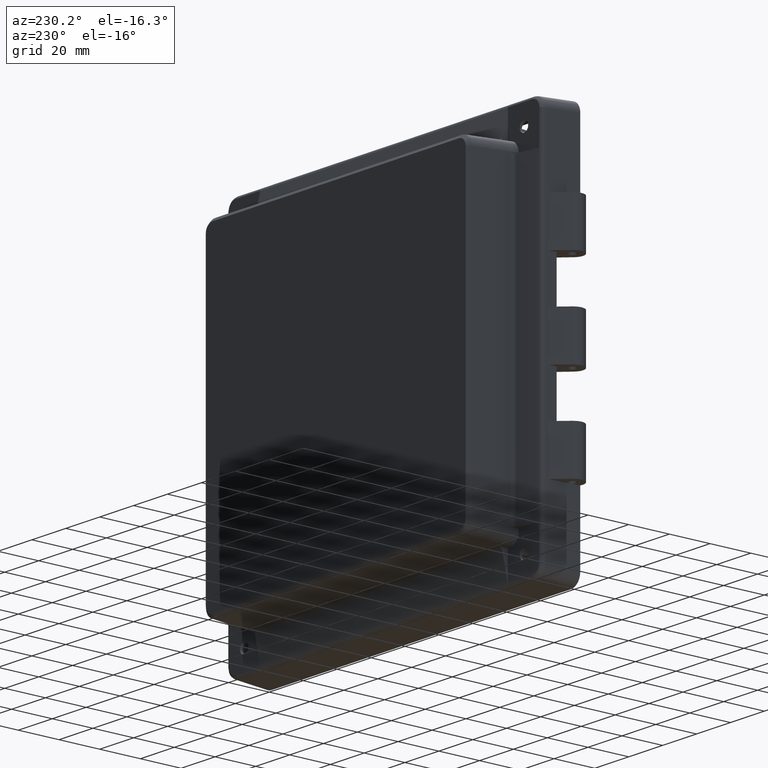
[diagram: clean part render]
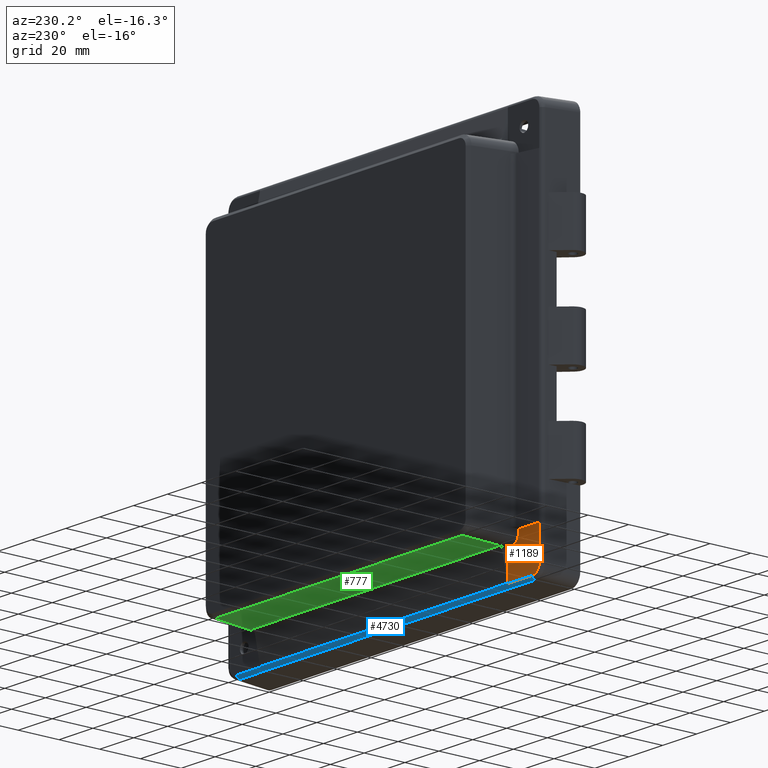
[diagram: same view with three faces highlighted in distinct colors, each labeled with its STEP entity id]
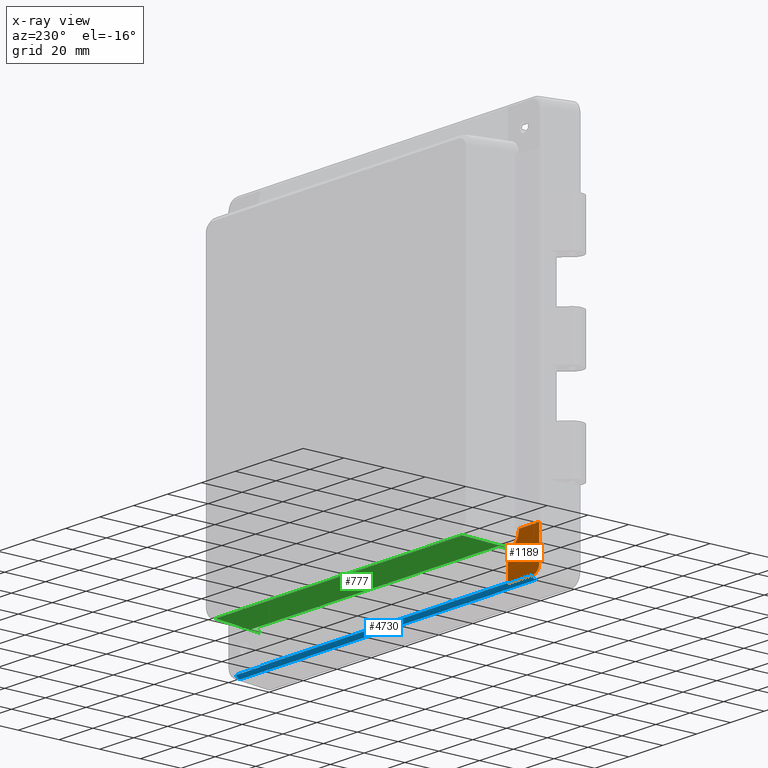
[diagram: x-ray of the same camera — body ghosted, the three highlighted faces saturated]
A machine part, auxiliary view with three faces highlighted in distinct colors.
The next image is the same camera in x-ray (body ghosted, the three faces saturated) — at least one of them is partly hidden behind the body in this view.
Their STEP definitions:

[orange] entity #1189 — the highlighted planar face has unit normal (0, 1, 0).
#34 = DIRECTION ( 'NONE',  ( -1.000000000000000000, 0.0000000000000000000, 0.0000000000000000000 ) ) ;
#42 = VERTEX_POINT ( 'NONE', #2968 ) ;
#67 = ORIENTED_EDGE ( 'NONE', *, *, #5579, .F. ) ;
#68 = CARTESIAN_POINT ( 'NONE',  ( -73.08475897172267800, 10.26305314132466200, -81.70147521895934500 ) ) ;
#96 = VERTEX_POINT ( 'NONE', #3168 ) ;
#128 = CARTESIAN_POINT ( 'NONE',  ( -79.46213617619935100, 10.26305314132466200, -74.46967373504917000 ) ) ;
#179 = B_SPLINE_CURVE_WITH_KNOTS ( 'NONE', 3,
 ( #2058, #5962, #959, #6698 ),
 .UNSPECIFIED., .F., .F.,
 ( 4, 4 ),
 ( 4.163336342344337000E-017, 0.0002607945202662411800 ),
 .UNSPECIFIED. ) ;
#209 = CARTESIAN_POINT ( 'NONE',  ( -90.01611526761999500, 10.26305314132466200, -92.86899418164762200 ) ) ;
#237 = CARTESIAN_POINT ( 'NONE',  ( -89.31779479687595800, 10.26305314132466300, -93.28586394526982400 ) ) ;
#490 = DIRECTION ( 'NONE',  ( -0.7660444431189692400, 0.0000000000000000000, 0.6427876096865498000 ) ) ;
#517 = CARTESIAN_POINT ( 'NONE',  ( 73.96967373504922700, 10.26305314132466200, 74.46967373504919900 ) ) ;
#570 = PLANE ( 'NONE',  #2822 ) ;
#604 = DIRECTION ( 'NONE',  ( 0.0000000000000000000, 0.0000000000000000000, 1.000000000000000000 ) ) ;
#609 = LINE ( 'NONE', #6969, #1693 ) ;
#630 = ORIENTED_EDGE ( 'NONE', *, *, #2874, .T. ) ;
#779 = EDGE_CURVE ( 'NONE', #6082, #4636, #1017, .T. ) ;
#847 = CARTESIAN_POINT ( 'NONE',  ( -73.96967373504918400, 10.26305314132466200, -79.96213617619933700 ) ) ;
#870 = CARTESIAN_POINT ( 'NONE',  ( -89.56253227678773500, 10.26305314132466000, -93.16230718569342200 ) ) ;
#900 = CARTESIAN_POINT ( 'NONE',  ( -91.58264067045061600, 10.26305314132466200, -73.58475897172269200 ) ) ;
#932 = VERTEX_POINT ( 'NONE', #2326 ) ;
#959 = CARTESIAN_POINT ( 'NONE',  ( -87.30350179303006500, 10.26305314132466200, -93.68264067045058100 ) ) ;
#971 = CARTESIAN_POINT ( 'NONE',  ( 93.40000000000007700, 10.26305314132466200, -93.68264067045056700 ) ) ;
#1017 = CIRCLE ( 'NONE', #4174, 2.499999999999988500 ) ;
#1023 = ORIENTED_EDGE ( 'NONE', *, *, #1105, .F. ) ;
#1037 = DIRECTION ( 'NONE',  ( 0.0000000000000000000, 0.0000000000000000000, 1.000000000000000000 ) ) ;
#1085 = CARTESIAN_POINT ( 'NONE',  ( -80.47424303675309400, 10.26305314132466200, -82.60225959424913400 ) ) ;
#1105 = EDGE_CURVE ( 'NONE', #2096, #4070, #1941, .T. ) ;
#1162 = DIRECTION ( 'NONE',  ( -1.000000000000000000, 0.0000000000000000000, 0.0000000000000000000 ) ) ;
#1189 = ADVANCED_FACE ( 'NONE', ( #3715, #7379 ), #570, .T. ) ;
#1249 = EDGE_CURVE ( 'NONE', #3218, #3585, #4171, .T. ) ;
#1292 = CARTESIAN_POINT ( 'NONE',  ( -79.18177703806154000, 10.26305314132466200, -76.23920910693496500 ) ) ;
#1319 = CARTESIAN_POINT ( 'NONE',  ( -77.34010365958138800, 10.26305314132466200, -78.86575685644218900 ) ) ;
#1366 = CARTESIAN_POINT ( 'NONE',  ( -74.33067421224697600, 10.26305314132466200, -79.96213617619932300 ) ) ;
#1408 = CARTESIAN_POINT ( 'NONE',  ( -91.57980475627654500, 10.26305314132466200, -89.57734938703171700 ) ) ;
#1428 = CARTESIAN_POINT ( 'NONE',  ( -90.60673246428268600, 10.26305314132466300, -92.31754257950359500 ) ) ;
#1693 = VECTOR ( 'NONE', #1162, 1000.000000000000000 ) ;
#1714 = CARTESIAN_POINT ( 'NONE',  ( -82.51926223426440300, 10.26305314132466200, -86.51926223426436000 ) ) ;
#1799 = DIRECTION ( 'NONE',  ( 0.0000000000000000000, 0.0000000000000000000, 1.000000000000000000 ) ) ;
#1930 = CARTESIAN_POINT ( 'NONE',  ( -79.42688717324297400, 10.26305314132466200, -75.18749910384652000 ) ) ;
#1941 = LINE ( 'NONE', #971, #6758 ) ;
#1966 = CARTESIAN_POINT ( 'NONE',  ( -91.57980475627654500, 10.26305314132466200, -89.57734938703171700 ) ) ;
#1975 = VERTEX_POINT ( 'NONE', #5859 ) ;
#1997 = DIRECTION ( 'NONE',  ( -0.0000000000000000000, -1.000000000000000000, -0.0000000000000000000 ) ) ;
#2005 = DIRECTION ( 'NONE',  ( 0.0000000000000000000, 0.0000000000000000000, -1.000000000000000000 ) ) ;
#2011 = DIRECTION ( 'NONE',  ( -0.0000000000000000000, -1.000000000000000000, -0.0000000000000000000 ) ) ;
#2019 = DIRECTION ( 'NONE',  ( 0.0000000000000000000, 0.0000000000000000000, -1.000000000000000000 ) ) ;
#2031 = VECTOR ( 'NONE', #490, 1000.000000000000100 ) ;
#2058 = CARTESIAN_POINT ( 'NONE',  ( -87.47734938703173700, 10.26305314132466200, -93.67980475627649600 ) ) ;
#2092 = AXIS2_PLACEMENT_3D ( 'NONE', #6964, #6861, #1799 ) ;
#2096 = VERTEX_POINT ( 'NONE', #5910 ) ;
#2264 = LINE ( 'NONE', #5327, #6569 ) ;
#2326 = CARTESIAN_POINT ( 'NONE',  ( -87.47734938703173700, 10.26305314132466200, -93.67980475627649600 ) ) ;
#2403 = CIRCLE ( 'NONE', #7018, 2.499999999999988500 ) ;
#2501 = CARTESIAN_POINT ( 'NONE',  ( -75.38415624586852500, 10.26305314132466000, -79.78880148514602400 ) ) ;
#2534 = CARTESIAN_POINT ( 'NONE',  ( -81.67173718818632700, 10.26305314132466200, -81.98906488024424300 ) ) ;
#2547 = ORIENTED_EDGE ( 'NONE', *, *, #3440, .T. ) ;
#2574 = VECTOR ( 'NONE', #2005, 1000.000000000000000 ) ;
#2663 = DIRECTION ( 'NONE',  ( 1.000000000000000000, -0.0000000000000000000, 0.0000000000000000000 ) ) ;
#2696 = EDGE_CURVE ( 'NONE', #42, #5215, #2264, .T. ) ;
#2790 = CIRCLE ( 'NONE', #5649, 2.499999999999988500 ) ;
#2822 = AXIS2_PLACEMENT_3D ( 'NONE', #517, #7423, #5689 ) ;
#2845 = CARTESIAN_POINT ( 'NONE',  ( -73.08475897172267800, 10.26305314132466200, -93.68264067045056700 ) ) ;
#2853 = VERTEX_POINT ( 'NONE', #6216 ) ;
#2874 = EDGE_CURVE ( 'NONE', #96, #1975, #2790, .T. ) ;
#2968 = CARTESIAN_POINT ( 'NONE',  ( -73.08475897172267800, 10.26305314132465800, -79.96213617619933700 ) ) ;
#3024 = LINE ( 'NONE', #68, #5713 ) ;
#3027 = CARTESIAN_POINT ( 'NONE',  ( -73.96967373504918400, 10.26305314132466200, -79.96213617619933700 ) ) ;
#3139 = CARTESIAN_POINT ( 'NONE',  ( -79.46213617619938000, 10.26305314132466200, -75.32409801448275700 ) ) ;
#3155 = CARTESIAN_POINT ( 'NONE',  ( -91.56798119111826400, 10.26305314132466000, -90.12002914153710300 ) ) ;
#3168 = CARTESIAN_POINT ( 'NONE',  ( -81.55616559099385700, 10.26305314132466200, -81.71221978651421100 ) ) ;
#3202 = VECTOR ( 'NONE', #4850, 1000.000000000000000 ) ;
#3218 = VERTEX_POINT ( 'NONE', #1085 ) ;
#3371 = B_SPLINE_CURVE_WITH_KNOTS ( 'NONE', 3,
 ( #5469, #5493, #4990, #5013 ),
 .UNSPECIFIED., .F., .F.,
 ( 4, 4 ),
 ( 1.387778780781445700E-017, 0.0002607945202661995400 ),
 .UNSPECIFIED. ) ;
#3379 = CARTESIAN_POINT ( 'NONE',  ( -82.51926223426440300, 10.26305314132466200, -84.01926223426437400 ) ) ;
#3388 = EDGE_LOOP ( 'NONE', ( #630, #5236, #4520, #2547, #3705, #4833 ) ) ;
#3440 = EDGE_CURVE ( 'NONE', #4636, #3218, #4548, .T. ) ;
#3466 = EDGE_CURVE ( 'NONE', #4070, #42, #3024, .T. ) ;
#3482 = ORIENTED_EDGE ( 'NONE', *, *, #6717, .F. ) ;
#3507 = ORIENTED_EDGE ( 'NONE', *, *, #2696, .F. ) ;
#3555 = EDGE_CURVE ( 'NONE', #4185, #4796, #4279, .T. ) ;
#3585 = VERTEX_POINT ( 'NONE', #4075 ) ;
#3682 = CARTESIAN_POINT ( 'NONE',  ( -90.77816533940664100, 10.26305314132466500, -92.10370192840194600 ) ) ;
#3698 = CARTESIAN_POINT ( 'NONE',  ( -75.73032353873499300, 10.26305314132466300, -79.68472801789867800 ) ) ;
#3702 = CARTESIAN_POINT ( 'NONE',  ( -91.19021633539554700, 10.26305314132466300, -91.40871898886668100 ) ) ;
#3705 = ORIENTED_EDGE ( 'NONE', *, *, #1249, .T. ) ;
#3715 = FACE_OUTER_BOUND ( 'NONE', #4243, .T. ) ;
#3736 = EDGE_CURVE ( 'NONE', #6462, #2853, #4101, .T. ) ;
#3742 = CARTESIAN_POINT ( 'NONE',  ( -79.46213617619932300, 10.26305314132465800, -73.58475897172269200 ) ) ;
#3934 = ORIENTED_EDGE ( 'NONE', *, *, #6953, .F. ) ;
#4039 = DIRECTION ( 'NONE',  ( -0.0000000000000000000, -1.000000000000000000, -0.0000000000000000000 ) ) ;
#4070 = VERTEX_POINT ( 'NONE', #2845 ) ;
#4075 = CARTESIAN_POINT ( 'NONE',  ( -81.47890090528034100, 10.26305314132466200, -81.75925154730853700 ) ) ;
#4100 = DIRECTION ( 'NONE',  ( -0.0000000000000000000, 0.0000000000000000000, 1.000000000000000000 ) ) ;
#4101 = LINE ( 'NONE', #4853, #2574 ) ;
#4171 = LINE ( 'NONE', #6264, #2031 ) ;
#4174 = AXIS2_PLACEMENT_3D ( 'NONE', #3379, #6199, #1037 ) ;
#4185 = VERTEX_POINT ( 'NONE', #128 ) ;
#4243 = EDGE_LOOP ( 'NONE', ( #6505, #3482, #6206, #6074, #3934, #6541, #67, #3507, #5427, #1023 ) ) ;
#4255 = CARTESIAN_POINT ( 'NONE',  ( -82.51926223426440300, 10.26305314132466200, -84.01926223426437400 ) ) ;
#4256 = CARTESIAN_POINT ( 'NONE',  ( -74.68567243382970800, 10.26305314132466000, -79.92689158470562900 ) ) ;
#4279 = LINE ( 'NONE', #3139, #3202 ) ;
#4280 = EDGE_CURVE ( 'NONE', #1975, #6082, #2403, .T. ) ;
#4306 = CARTESIAN_POINT ( 'NONE',  ( -90.22508268454007000, 10.26305314132466200, -92.70019947067784500 ) ) ;
#4330 = CARTESIAN_POINT ( 'NONE',  ( -88.81540378362549900, 10.26305314132466200, -93.47942887735514700 ) ) ;
#4479 = AXIS2_PLACEMENT_3D ( 'NONE', #2534, #1997, #2019 ) ;
#4520 = ORIENTED_EDGE ( 'NONE', *, *, #779, .T. ) ;
#4548 = CIRCLE ( 'NONE', #2092, 0.2999999999999947200 ) ;
#4632 = CIRCLE ( 'NONE', #4479, 0.3000000000000085900 ) ;
#4636 = VERTEX_POINT ( 'NONE', #6383 ) ;
#4735 = CARTESIAN_POINT ( 'NONE',  ( -76.72855308645588900, 10.26305314132466200, -79.27320049558549900 ) ) ;
#4762 = CARTESIAN_POINT ( 'NONE',  ( -78.76745017932103100, 10.26305314132466000, -77.23897243381108500 ) ) ;
#4782 = DIRECTION ( 'NONE',  ( 0.0000000000000000000, 0.0000000000000000000, 1.000000000000000000 ) ) ;
#4796 = VERTEX_POINT ( 'NONE', #3742 ) ;
#4808 = EDGE_CURVE ( 'NONE', #2853, #5245, #3371, .T. ) ;
#4833 = ORIENTED_EDGE ( 'NONE', *, *, #5183, .T. ) ;
#4850 = DIRECTION ( 'NONE',  ( 3.136525320392762400E-014, 0.0000000000000000000, 1.000000000000000000 ) ) ;
#4853 = CARTESIAN_POINT ( 'NONE',  ( -91.58264067045061600, 10.26305314132466200, 95.50000000000002800 ) ) ;
#4884 = CARTESIAN_POINT ( 'NONE',  ( -88.55408089668073000, 10.26305314132466200, -93.55138090086416000 ) ) ;
#4990 = CARTESIAN_POINT ( 'NONE',  ( -91.58169831589468400, 10.26305314132466200, -89.49043850567191800 ) ) ;
#5013 = CARTESIAN_POINT ( 'NONE',  ( -91.57980475627654500, 10.26305314132466200, -89.57734938703171700 ) ) ;
#5065 = B_SPLINE_CURVE_WITH_KNOTS ( 'NONE', 3,
 ( #1966, #3155, #6611, #3702, #7147, #3682, #1428, #4306, #209, #870, #237, #4330, #4884, #6036, #5478, #7169 ),
 .UNSPECIFIED., .F., .F.,
 ( 4, 2, 2, 2, 2, 2, 2, 4 ),
 ( 1.387778780781445700E-017, 0.001604646926026846100, 0.002406970389040288300, 0.003209293852053730700, 0.004011617315067173200, 0.004813940778080615600, 0.005616264241094058100, 0.006418587704107500500 ),
 .UNSPECIFIED. ) ;
#5183 = EDGE_CURVE ( 'NONE', #3585, #96, #4632, .T. ) ;
#5215 = VERTEX_POINT ( 'NONE', #847 ) ;
#5236 = ORIENTED_EDGE ( 'NONE', *, *, #4280, .T. ) ;
#5245 = VERTEX_POINT ( 'NONE', #1408 ) ;
#5317 = CARTESIAN_POINT ( 'NONE',  ( -79.46213617619935100, 10.26305314132466200, -74.46967373504917000 ) ) ;
#5327 = CARTESIAN_POINT ( 'NONE',  ( -75.70901277780919300, 10.26305314132466200, -79.96213617619933700 ) ) ;
#5383 = B_SPLINE_CURVE_WITH_KNOTS ( 'NONE', 3,
 ( #3027, #1366, #4256, #2501, #3698, #4735, #1319, #5956, #4762, #1292, #6481, #1930, #6536, #5317 ),
 .UNSPECIFIED., .F., .F.,
 ( 4, 2, 2, 2, 2, 2, 4 ),
 ( 0.0000000000000000000, 0.001067629818364158000, 0.002135259636728315900, 0.004270519273456684800, 0.006405778910185054100, 0.007473408728549219200, 0.008541038546913385200 ),
 .UNSPECIFIED. ) ;
#5427 = ORIENTED_EDGE ( 'NONE', *, *, #3466, .F. ) ;
#5469 = CARTESIAN_POINT ( 'NONE',  ( -91.58264067045061600, 10.26305314132466200, -89.31657028627464000 ) ) ;
#5478 = CARTESIAN_POINT ( 'NONE',  ( -87.74934107658951600, 10.26305314132466200, -93.67387877242082100 ) ) ;
#5493 = CARTESIAN_POINT ( 'NONE',  ( -91.58264067045061600, 10.26305314132466200, -89.40350179303003100 ) ) ;
#5579 = EDGE_CURVE ( 'NONE', #5215, #4185, #5383, .T. ) ;
#5649 = AXIS2_PLACEMENT_3D ( 'NONE', #6933, #4039, #604 ) ;
#5689 = DIRECTION ( 'NONE',  ( 0.0000000000000000000, -0.0000000000000000000, 1.000000000000000000 ) ) ;
#5713 = VECTOR ( 'NONE', #4100, 1000.000000000000000 ) ;
#5859 = CARTESIAN_POINT ( 'NONE',  ( -82.51926223426440300, 10.26305314132466200, -81.51926223426437400 ) ) ;
#5910 = CARTESIAN_POINT ( 'NONE',  ( -87.21657028627464600, 10.26305314132466200, -93.68264067045058100 ) ) ;
#5956 = CARTESIAN_POINT ( 'NONE',  ( -78.35913959468115300, 10.26305314132466300, -77.84871711350761800 ) ) ;
#5962 = CARTESIAN_POINT ( 'NONE',  ( -87.39043850567196600, 10.26305314132466200, -93.68169831589465000 ) ) ;
#6036 = CARTESIAN_POINT ( 'NONE',  ( -88.01927551426824400, 10.26305314132466200, -93.64877784547421400 ) ) ;
#6074 = ORIENTED_EDGE ( 'NONE', *, *, #3736, .F. ) ;
#6082 = VERTEX_POINT ( 'NONE', #1714 ) ;
#6199 = DIRECTION ( 'NONE',  ( -0.0000000000000000000, -1.000000000000000000, -0.0000000000000000000 ) ) ;
#6206 = ORIENTED_EDGE ( 'NONE', *, *, #4808, .F. ) ;
#6216 = CARTESIAN_POINT ( 'NONE',  ( -91.58264067045061600, 10.26305314132466200, -89.31657028627464000 ) ) ;
#6264 = CARTESIAN_POINT ( 'NONE',  ( -80.47424303675309400, 10.26305314132466200, -82.60225959424913400 ) ) ;
#6383 = CARTESIAN_POINT ( 'NONE',  ( -80.41450892221288900, 10.26305314132466200, -82.67018347621943500 ) ) ;
#6462 = VERTEX_POINT ( 'NONE', #900 ) ;
#6481 = CARTESIAN_POINT ( 'NONE',  ( -79.28671174719474400, 10.26305314132466200, -75.89289492217758900 ) ) ;
#6505 = ORIENTED_EDGE ( 'NONE', *, *, #6759, .F. ) ;
#6536 = CARTESIAN_POINT ( 'NONE',  ( -79.46213617619932300, 10.26305314132465800, -74.83067421224718900 ) ) ;
#6541 = ORIENTED_EDGE ( 'NONE', *, *, #3555, .F. ) ;
#6569 = VECTOR ( 'NONE', #34, 1000.000000000000000 ) ;
#6611 = CARTESIAN_POINT ( 'NONE',  ( -91.48069700662659900, 10.26305314132466200, -90.64797037122913500 ) ) ;
#6698 = CARTESIAN_POINT ( 'NONE',  ( -87.21657028627464600, 10.26305314132466200, -93.68264067045058100 ) ) ;
#6717 = EDGE_CURVE ( 'NONE', #5245, #932, #5065, .T. ) ;
#6758 = VECTOR ( 'NONE', #2663, 1000.000000000000000 ) ;
#6759 = EDGE_CURVE ( 'NONE', #932, #2096, #179, .T. ) ;
#6861 = DIRECTION ( 'NONE',  ( -0.0000000000000000000, -1.000000000000000000, -0.0000000000000000000 ) ) ;
#6933 = CARTESIAN_POINT ( 'NONE',  ( -82.51926223426440300, 10.26305314132466200, -84.01926223426437400 ) ) ;
#6953 = EDGE_CURVE ( 'NONE', #4796, #6462, #609, .T. ) ;
#6964 = CARTESIAN_POINT ( 'NONE',  ( -80.66707931965905200, 10.26305314132466200, -82.83207292718482500 ) ) ;
#6969 = CARTESIAN_POINT ( 'NONE',  ( -98.32409801448267200, 10.26305314132466200, -73.58475897172269200 ) ) ;
#7018 = AXIS2_PLACEMENT_3D ( 'NONE', #4255, #2011, #4782 ) ;
#7147 = CARTESIAN_POINT ( 'NONE',  ( -91.06839701822850900, 10.26305314132466200, -91.65125056211535100 ) ) ;
#7169 = CARTESIAN_POINT ( 'NONE',  ( -87.47734938703173700, 10.26305314132466200, -93.67980475627649600 ) ) ;
#7379 = FACE_BOUND ( 'NONE', #3388, .T. ) ;
#7423 = DIRECTION ( 'NONE',  ( 0.0000000000000000000, 1.000000000000000000, 0.0000000000000000000 ) ) ;

[blue] entity #4730 — the highlighted cylindrical surface (edge-blend (fillet) strip) has radius 2 mm, axis along (1, -0, 0).
#388 = VERTEX_POINT ( 'NONE', #5794 ) ;
#684 = VECTOR ( 'NONE', #822, 1000.000000000000000 ) ;
#782 = FACE_OUTER_BOUND ( 'NONE', #7285, .T. ) ;
#822 = DIRECTION ( 'NONE',  ( 1.000000000000000000, -0.0000000000000000000, 0.0000000000000000000 ) ) ;
#971 = CARTESIAN_POINT ( 'NONE',  ( 93.40000000000007700, 10.26305314132466200, -93.68264067045056700 ) ) ;
#1105 = EDGE_CURVE ( 'NONE', #2096, #4070, #1941, .T. ) ;
#1194 = CIRCLE ( 'NONE', #6219, 2.000000000000001800 ) ;
#1380 = EDGE_CURVE ( 'NONE', #3224, #4070, #1452, .T. ) ;
#1413 = VERTEX_POINT ( 'NONE', #2871 ) ;
#1452 =( BOUNDED_CURVE ( )  B_SPLINE_CURVE ( 3, ( #5258, #2409, #2381, #2434 ),
 .UNSPECIFIED., .F., .T. ) 
 B_SPLINE_CURVE_WITH_KNOTS ( ( 4, 4 ),
 ( 0.2094395102393153100, 0.3171184348651902000 ),
 .UNSPECIFIED. ) 
 CURVE ( )  GEOMETRIC_REPRESENTATION_ITEM ( )  RATIONAL_B_SPLINE_CURVE ( ( 1.000000000000000000, 0.9990340041431338100, 0.9990340041431338100, 1.000000000000000000 ) ) 
 REPRESENTATION_ITEM ( '' )  );
#1477 = DIRECTION ( 'NONE',  ( 0.0000000000000000000, 0.0000000000000000000, -1.000000000000000000 ) ) ;
#1531 = EDGE_CURVE ( 'NONE', #6119, #2096, #2899, .T. ) ;
#1593 = ORIENTED_EDGE ( 'NONE', *, *, #2215, .F. ) ;
#1635 = ORIENTED_EDGE ( 'NONE', *, *, #1531, .T. ) ;
#1936 = ORIENTED_EDGE ( 'NONE', *, *, #4514, .F. ) ;
#1940 = CARTESIAN_POINT ( 'NONE',  ( 73.08475897172270700, 10.26305314132466200, -93.68264067045056700 ) ) ;
#1941 = LINE ( 'NONE', #971, #6758 ) ;
#1961 = CYLINDRICAL_SURFACE ( 'NONE', #5791, 2.000000000000001800 ) ;
#2096 = VERTEX_POINT ( 'NONE', #5910 ) ;
#2215 = EDGE_CURVE ( 'NONE', #1413, #3770, #1194, .T. ) ;
#2270 = DIRECTION ( 'NONE',  ( 1.000000000000000000, -0.0000000000000000000, -0.0000000000000000000 ) ) ;
#2381 = CARTESIAN_POINT ( 'NONE',  ( -73.08358525589089500, 10.28544897354368200, -93.61440114518394800 ) ) ;
#2409 = CARTESIAN_POINT ( 'NONE',  ( -73.08260569285698700, 10.30414014968804700, -93.54505530144594200 ) ) ;
#2434 = CARTESIAN_POINT ( 'NONE',  ( -73.08475897172267800, 10.26305314132466200, -93.68264067045056700 ) ) ;
#2663 = DIRECTION ( 'NONE',  ( 1.000000000000000000, -0.0000000000000000000, 0.0000000000000000000 ) ) ;
#2845 = CARTESIAN_POINT ( 'NONE',  ( -73.08475897172267800, 10.26305314132466200, -93.68264067045056700 ) ) ;
#2871 = CARTESIAN_POINT ( 'NONE',  ( 87.21657028627468800, 8.467449213979881200, -95.05623979050341200 ) ) ;
#2899 = CIRCLE ( 'NONE', #4461, 2.000000000000001800 ) ;
#3193 = DIRECTION ( 'NONE',  ( 0.0000000000000000000, 0.0000000000000000000, -1.000000000000000000 ) ) ;
#3224 = VERTEX_POINT ( 'NONE', #4687 ) ;
#3477 = LINE ( 'NONE', #7415, #4457 ) ;
#3501 = CARTESIAN_POINT ( 'NONE',  ( -87.38345976601948500, 10.31907250296160500, -93.47480410262977600 ) ) ;
#3622 = ORIENTED_EDGE ( 'NONE', *, *, #1380, .F. ) ;
#3770 = VERTEX_POINT ( 'NONE', #5902 ) ;
#3894 = CARTESIAN_POINT ( 'NONE',  ( -87.21657028627464600, 8.362777301493991900, -93.05898072099427100 ) ) ;
#4070 = VERTEX_POINT ( 'NONE', #2845 ) ;
#4113 = EDGE_CURVE ( 'NONE', #6119, #1413, #3477, .T. ) ;
#4264 = CARTESIAN_POINT ( 'NONE',  ( 93.40000000000007700, 10.26305314132466200, -93.68264067045056700 ) ) ;
#4450 = VECTOR ( 'NONE', #5170, 1000.000000000000000 ) ;
#4457 = VECTOR ( 'NONE', #2270, 1000.000000000000000 ) ;
#4461 = AXIS2_PLACEMENT_3D ( 'NONE', #3894, #6065, #1477 ) ;
#4514 = EDGE_CURVE ( 'NONE', #388, #3224, #4640, .T. ) ;
#4576 = ORIENTED_EDGE ( 'NONE', *, *, #5213, .T. ) ;
#4597 = CARTESIAN_POINT ( 'NONE',  ( -87.21657028627464600, 8.467449213979879400, -95.05623979050341200 ) ) ;
#4640 = LINE ( 'NONE', #3501, #4450 ) ;
#4687 = CARTESIAN_POINT ( 'NONE',  ( -73.08182312138244200, 10.31907250296160500, -93.47480410262977600 ) ) ;
#4730 = ADVANCED_FACE ( 'NONE', ( #782 ), #1961, .T. ) ;
#4751 =( BOUNDED_CURVE ( )  B_SPLINE_CURVE ( 3, ( #6704, #6116, #7313, #5605 ),
 .UNSPECIFIED., .F., .F. ) 
 B_SPLINE_CURVE_WITH_KNOTS ( ( 4, 4 ),
 ( 2.824474218724603200, 2.932153143350477700 ),
 .UNSPECIFIED. ) 
 CURVE ( )  GEOMETRIC_REPRESENTATION_ITEM ( )  RATIONAL_B_SPLINE_CURVE ( ( 1.000000000000000000, 0.9990340041431338100, 0.9990340041431338100, 1.000000000000000000 ) ) 
 REPRESENTATION_ITEM ( '' )  );
#5104 = VERTEX_POINT ( 'NONE', #1940 ) ;
#5170 = DIRECTION ( 'NONE',  ( -1.000000000000000000, -0.0000000000000000000, -0.0000000000000000000 ) ) ;
#5213 = EDGE_CURVE ( 'NONE', #5104, #3770, #6773, .T. ) ;
#5258 = CARTESIAN_POINT ( 'NONE',  ( -73.08182312138244200, 10.31907250296160500, -93.47480410262977600 ) ) ;
#5315 = EDGE_CURVE ( 'NONE', #5104, #388, #4751, .T. ) ;
#5360 = ORIENTED_EDGE ( 'NONE', *, *, #5315, .F. ) ;
#5460 = CARTESIAN_POINT ( 'NONE',  ( 87.21657028627468800, 8.362777301493993700, -93.05898072099427100 ) ) ;
#5605 = CARTESIAN_POINT ( 'NONE',  ( 73.08182312138245600, 10.31907250296160500, -93.47480410262977600 ) ) ;
#5791 = AXIS2_PLACEMENT_3D ( 'NONE', #6027, #7159, #5926 ) ;
#5794 = CARTESIAN_POINT ( 'NONE',  ( 73.08182312138245600, 10.31907250296160500, -93.47480410262977600 ) ) ;
#5902 = CARTESIAN_POINT ( 'NONE',  ( 87.21657028627467400, 10.26305314132466200, -93.68264067045059600 ) ) ;
#5910 = CARTESIAN_POINT ( 'NONE',  ( -87.21657028627464600, 10.26305314132466200, -93.68264067045058100 ) ) ;
#5926 = DIRECTION ( 'NONE',  ( 0.0000000000000000000, 0.0000000000000000000, -1.000000000000000000 ) ) ;
#6027 = CARTESIAN_POINT ( 'NONE',  ( 93.40000000000007700, 8.362777301493993700, -93.05898072099427100 ) ) ;
#6065 = DIRECTION ( 'NONE',  ( 1.000000000000000000, 0.0000000000000000000, 0.0000000000000000000 ) ) ;
#6116 = CARTESIAN_POINT ( 'NONE',  ( 73.08358525589091000, 10.28544897354368200, -93.61440114518394800 ) ) ;
#6119 = VERTEX_POINT ( 'NONE', #4597 ) ;
#6219 = AXIS2_PLACEMENT_3D ( 'NONE', #5460, #7052, #3193 ) ;
#6704 = CARTESIAN_POINT ( 'NONE',  ( 73.08475897172270700, 10.26305314132466200, -93.68264067045056700 ) ) ;
#6758 = VECTOR ( 'NONE', #2663, 1000.000000000000000 ) ;
#6773 = LINE ( 'NONE', #4264, #684 ) ;
#6797 = ORIENTED_EDGE ( 'NONE', *, *, #1105, .T. ) ;
#7052 = DIRECTION ( 'NONE',  ( 1.000000000000000000, 0.0000000000000000000, 0.0000000000000000000 ) ) ;
#7159 = DIRECTION ( 'NONE',  ( 1.000000000000000000, -0.0000000000000000000, 0.0000000000000000000 ) ) ;
#7285 = EDGE_LOOP ( 'NONE', ( #3622, #1936, #5360, #4576, #1593, #7357, #1635, #6797 ) ) ;
#7313 = CARTESIAN_POINT ( 'NONE',  ( 73.08260569285700100, 10.30414014968804700, -93.54505530144594200 ) ) ;
#7357 = ORIENTED_EDGE ( 'NONE', *, *, #4113, .F. ) ;
#7415 = CARTESIAN_POINT ( 'NONE',  ( 87.38345976601945600, 8.467449213979881200, -95.05623979050341200 ) ) ;

[green] entity #777 — the highlighted planar face has unit normal (0, 0.0523, -0.9986).
#13 = DIRECTION ( 'NONE',  ( 0.05226442768871404600, 0.9972646886342372300, 0.05226442768871402500 ) ) ;
#34 = DIRECTION ( 'NONE',  ( -1.000000000000000000, 0.0000000000000000000, 0.0000000000000000000 ) ) ;
#42 = VERTEX_POINT ( 'NONE', #2968 ) ;
#151 = LINE ( 'NONE', #7254, #4289 ) ;
#178 = EDGE_CURVE ( 'NONE', #42, #2900, #151, .T. ) ;
#219 = ORIENTED_EDGE ( 'NONE', *, *, #6106, .T. ) ;
#245 = EDGE_CURVE ( 'NONE', #3470, #3496, #5541, .T. ) ;
#438 = VERTEX_POINT ( 'NONE', #2851 ) ;
#540 = EDGE_LOOP ( 'NONE', ( #3070, #5048, #2128, #1039, #219, #5822, #1339, #2078 ) ) ;
#577 = CARTESIAN_POINT ( 'NONE',  ( 72.80417699759088600, 32.50205569786815100, -78.79663943874101100 ) ) ;
#596 = LINE ( 'NONE', #634, #3291 ) ;
#634 = CARTESIAN_POINT ( 'NONE',  ( 74.82409801448271500, -22.92551287988146700, -81.70147521895934500 ) ) ;
#651 = CARTESIAN_POINT ( 'NONE',  ( -72.84925082420733100, 14.75681629513858600, -79.72662802868399000 ) ) ;
#777 = ADVANCED_FACE ( 'NONE', ( #6765 ), #1108, .T. ) ;
#847 = CARTESIAN_POINT ( 'NONE',  ( -73.96967373504918400, 10.26305314132466200, -79.96213617619933700 ) ) ;
#892 = DIRECTION ( 'NONE',  ( 0.05226442768871403200, -0.9972646886342372300, -0.05226442768871402500 ) ) ;
#1039 = ORIENTED_EDGE ( 'NONE', *, *, #2696, .T. ) ;
#1108 = PLANE ( 'NONE',  #4554 ) ;
#1339 = ORIENTED_EDGE ( 'NONE', *, *, #6700, .T. ) ;
#1400 = CARTESIAN_POINT ( 'NONE',  ( 74.08548934242556100, 8.053159706404089800, -80.07795178357569900 ) ) ;
#1616 = DIRECTION ( 'NONE',  ( 0.0000000000000000000, 0.9986295347545739400, 0.05233595624294395300 ) ) ;
#1681 = CARTESIAN_POINT ( 'NONE',  ( 72.72567306322640900, 32.50205569786815800, -78.79663943874101100 ) ) ;
#1826 = CARTESIAN_POINT ( 'NONE',  ( -72.80417699759087200, 32.50205569786815100, -78.79663943874101100 ) ) ;
#2078 = ORIENTED_EDGE ( 'NONE', *, *, #5832, .T. ) ;
#2128 = ORIENTED_EDGE ( 'NONE', *, *, #178, .F. ) ;
#2148 = VECTOR ( 'NONE', #4339, 1000.000000000000000 ) ;
#2197 = VECTOR ( 'NONE', #3149, 1000.000000000000000 ) ;
#2239 = VECTOR ( 'NONE', #13, 1000.000000000000200 ) ;
#2264 = LINE ( 'NONE', #5327, #6569 ) ;
#2696 = EDGE_CURVE ( 'NONE', #42, #5215, #2264, .T. ) ;
#2851 = CARTESIAN_POINT ( 'NONE',  ( 73.08475897172270700, 10.26305314132465800, -79.96213617619933700 ) ) ;
#2900 = VERTEX_POINT ( 'NONE', #651 ) ;
#2960 = CARTESIAN_POINT ( 'NONE',  ( 73.96967373504919900, 10.26305314132466200, -79.96213617619933700 ) ) ;
#2968 = CARTESIAN_POINT ( 'NONE',  ( -73.08475897172267800, 10.26305314132465800, -79.96213617619933700 ) ) ;
#2972 = CARTESIAN_POINT ( 'NONE',  ( 72.84925082420736000, 14.75681629513857900, -79.72662802868399000 ) ) ;
#3070 = ORIENTED_EDGE ( 'NONE', *, *, #4519, .T. ) ;
#3149 = DIRECTION ( 'NONE',  ( -1.000000000000000000, 0.0000000000000000000, 0.0000000000000000000 ) ) ;
#3291 = VECTOR ( 'NONE', #6332, 1000.000000000000200 ) ;
#3349 = CARTESIAN_POINT ( 'NONE',  ( -80.00000000000001400, 0.0000000000000000000, -80.50000000000000000 ) ) ;
#3465 = CARTESIAN_POINT ( 'NONE',  ( -74.52254060668615000, -0.2862752064970366400, -80.51500304783630200 ) ) ;
#3470 = VERTEX_POINT ( 'NONE', #1826 ) ;
#3496 = VERTEX_POINT ( 'NONE', #577 ) ;
#3609 = VERTEX_POINT ( 'NONE', #2972 ) ;
#3761 = LINE ( 'NONE', #3465, #2239 ) ;
#3951 = DIRECTION ( 'NONE',  ( 1.000000000000000000, -0.0000000000000000000, -0.0000000000000000000 ) ) ;
#3994 = DIRECTION ( 'NONE',  ( 0.0000000000000000000, 0.05233595624294395300, -0.9986295347545739400 ) ) ;
#4088 = LINE ( 'NONE', #7161, #2197 ) ;
#4289 = VECTOR ( 'NONE', #7180, 1000.000000000000200 ) ;
#4339 = DIRECTION ( 'NONE',  ( -1.000000000000000000, 0.0000000000000000000, 0.0000000000000000000 ) ) ;
#4519 = EDGE_CURVE ( 'NONE', #438, #3609, #596, .T. ) ;
#4554 = AXIS2_PLACEMENT_3D ( 'NONE', #3349, #3994, #1616 ) ;
#4664 = LINE ( 'NONE', #6663, #2148 ) ;
#4844 = VECTOR ( 'NONE', #892, 1000.000000000000200 ) ;
#5034 = VERTEX_POINT ( 'NONE', #2960 ) ;
#5048 = ORIENTED_EDGE ( 'NONE', *, *, #6458, .T. ) ;
#5215 = VERTEX_POINT ( 'NONE', #847 ) ;
#5327 = CARTESIAN_POINT ( 'NONE',  ( -75.70901277780919300, 10.26305314132466200, -79.96213617619933700 ) ) ;
#5541 = LINE ( 'NONE', #1681, #6354 ) ;
#5822 = ORIENTED_EDGE ( 'NONE', *, *, #245, .T. ) ;
#5832 = EDGE_CURVE ( 'NONE', #5034, #438, #4088, .T. ) ;
#6106 = EDGE_CURVE ( 'NONE', #5215, #3470, #3761, .T. ) ;
#6332 = DIRECTION ( 'NONE',  ( -0.05226442768871385900, 0.9972646886342372300, 0.05226442768871385900 ) ) ;
#6354 = VECTOR ( 'NONE', #3951, 1000.000000000000000 ) ;
#6458 = EDGE_CURVE ( 'NONE', #3609, #2900, #4664, .T. ) ;
#6569 = VECTOR ( 'NONE', #34, 1000.000000000000000 ) ;
#6663 = CARTESIAN_POINT ( 'NONE',  ( -72.92956840754111200, 14.75681629513857900, -79.72662802868399000 ) ) ;
#6700 = EDGE_CURVE ( 'NONE', #3496, #5034, #7418, .T. ) ;
#6765 = FACE_OUTER_BOUND ( 'NONE', #540, .T. ) ;
#7161 = CARTESIAN_POINT ( 'NONE',  ( 75.70901277780920700, 10.26305314132466200, -79.96213617619933700 ) ) ;
#7180 = DIRECTION ( 'NONE',  ( 0.05226442768871385900, 0.9972646886342372300, 0.05226442768871385900 ) ) ;
#7254 = CARTESIAN_POINT ( 'NONE',  ( -74.82409801448268600, -22.92551287988146700, -81.70147521895934500 ) ) ;
#7418 = LINE ( 'NONE', #1400, #4844 ) ;